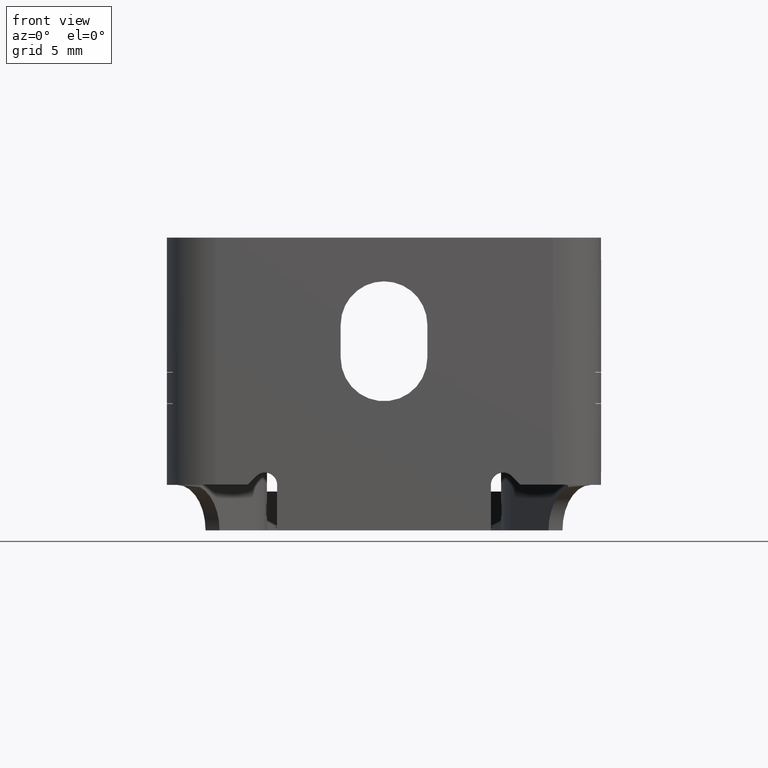
[diagram: clean part render]
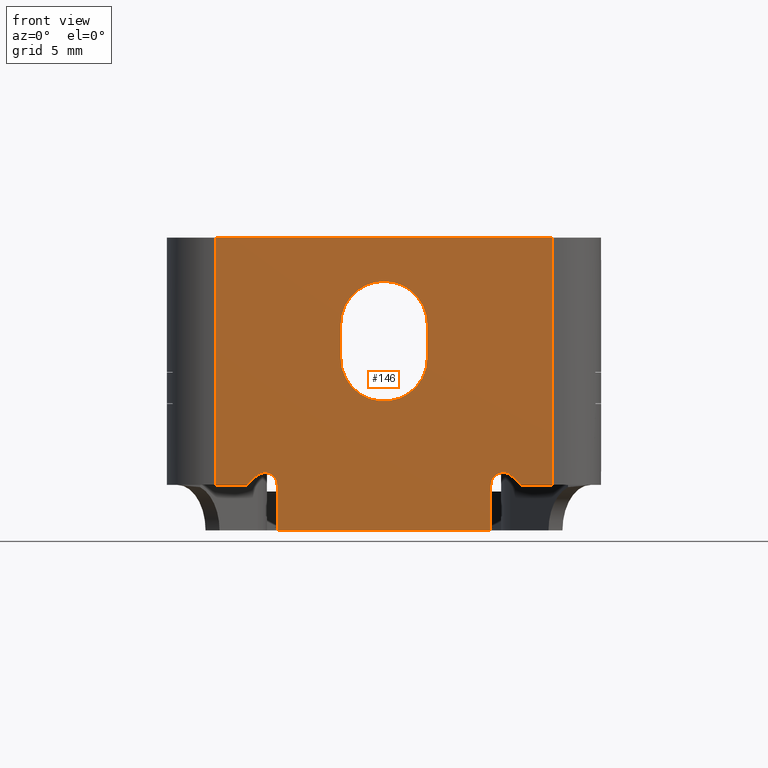
[diagram: same view with one face highlighted and labeled with its STEP entity id]
A machine part, front view. The second image highlights one B-rep face of the part: STEP entity #146.
In plain terms, the highlighted planar face has unit normal (0, 1, 0).
Its self-contained STEP definition (entity closure, byte-faithful):
#37 = CARTESIAN_POINT ( 'NONE',  ( 0.3229203102167831400, -0.04499999999999999800, -0.5830796897832171100 ) ) ;
#82 = VERTEX_POINT ( 'NONE', #2210 ) ;
#139 = EDGE_CURVE ( 'NONE', #2714, #3502, #224, .T. ) ;
#146 = ADVANCED_FACE ( 'NONE', ( #173, #217 ), #2651, .F. ) ;
#151 = DIRECTION ( 'NONE',  ( 1.000000000000000000, 0.0000000000000000000, 0.0000000000000000000 ) ) ;
#173 = FACE_BOUND ( 'NONE', #2837, .T. ) ;
#184 = VERTEX_POINT ( 'NONE', #4098 ) ;
#188 = VERTEX_POINT ( 'NONE', #1244 ) ;
#217 = FACE_OUTER_BOUND ( 'NONE', #3056, .T. ) ;
#224 = CIRCLE ( 'NONE', #3428, 0.1095000000000000000 ) ;
#225 = CARTESIAN_POINT ( 'NONE',  ( -0.4258192205926868400, -0.04499999999999999800, -0.6049999999999999800 ) ) ;
#226 = VERTEX_POINT ( 'NONE', #2822 ) ;
#241 = DIRECTION ( 'NONE',  ( 0.0000000000000000000, 1.000000000000000000, 0.0000000000000000000 ) ) ;
#301 = ORIENTED_EDGE ( 'NONE', *, *, #564, .T. ) ;
#324 = EDGE_CURVE ( 'NONE', #1278, #3802, #2068, .T. ) ;
#333 = CARTESIAN_POINT ( 'NONE',  ( 0.3009999999999999900, -0.04499999999999999800, -0.6049999999999999800 ) ) ;
#357 = AXIS2_PLACEMENT_3D ( 'NONE', #2885, #2881, #2821 ) ;
#414 = LINE ( 'NONE', #2447, #2227 ) ;
#469 = CARTESIAN_POINT ( 'NONE',  ( 0.0000000000000000000, -0.04499999999999999800, -0.1999999999999999800 ) ) ;
#509 = AXIS2_PLACEMENT_3D ( 'NONE', #1008, #241, #1704 ) ;
#520 = ORIENTED_EDGE ( 'NONE', *, *, #3100, .T. ) ;
#546 = ORIENTED_EDGE ( 'NONE', *, *, #139, .T. ) ;
#564 = EDGE_CURVE ( 'NONE', #4377, #921, #2183, .T. ) ;
#612 = ORIENTED_EDGE ( 'NONE', *, *, #3354, .T. ) ;
#836 = DIRECTION ( 'NONE',  ( 0.0000000000000000000, 0.0000000000000000000, 1.000000000000000000 ) ) ;
#858 = CARTESIAN_POINT ( 'NONE',  ( -0.4258192205926868400, -0.04499999999999999800, 0.02000000000000000000 ) ) ;
#878 = VECTOR ( 'NONE', #2335, 39.37007874015748100 ) ;
#884 = DIRECTION ( 'NONE',  ( -0.0000000000000000000, -0.0000000000000000000, -1.000000000000000000 ) ) ;
#905 = AXIS2_PLACEMENT_3D ( 'NONE', #1569, #1490, #1474 ) ;
#921 = VERTEX_POINT ( 'NONE', #2559 ) ;
#925 = CARTESIAN_POINT ( 'NONE',  ( 0.3009999999999999900, -0.04499999999999999800, -0.5740000000000000700 ) ) ;
#987 = LINE ( 'NONE', #2255, #878 ) ;
#997 = CARTESIAN_POINT ( 'NONE',  ( -0.3229203102167831400, -0.04499999999999999800, -0.5830796897832171100 ) ) ;
#1007 = DIRECTION ( 'NONE',  ( 0.0000000000000000000, 0.0000000000000000000, 1.000000000000000000 ) ) ;
#1008 = CARTESIAN_POINT ( 'NONE',  ( -0.3009999999999999900, -0.04499999999999999800, -0.6049999999999999800 ) ) ;
#1044 = CARTESIAN_POINT ( 'NONE',  ( -0.3229203102167830800, -0.04499999999999999800, -0.5830796897832172300 ) ) ;
#1085 = EDGE_CURVE ( 'NONE', #4220, #3686, #3962, .T. ) ;
#1149 = LINE ( 'NONE', #997, #3795 ) ;
#1177 = ORIENTED_EDGE ( 'NONE', *, *, #3075, .T. ) ;
#1204 = ORIENTED_EDGE ( 'NONE', *, *, #3210, .T. ) ;
#1229 = DIRECTION ( 'NONE',  ( 0.0000000000000000000, -0.0000000000000000000, 1.000000000000000000 ) ) ;
#1236 = DIRECTION ( 'NONE',  ( 0.7071067811865442400, -0.0000000000000000000, 0.7071067811865507900 ) ) ;
#1244 = CARTESIAN_POINT ( 'NONE',  ( 0.2700000000000000700, -0.04499999999999999800, -0.6049999999999999800 ) ) ;
#1265 = LINE ( 'NONE', #1410, #3908 ) ;
#1278 = VERTEX_POINT ( 'NONE', #925 ) ;
#1378 = DIRECTION ( 'NONE',  ( -0.0000000000000000000, -0.0000000000000000000, -1.000000000000000000 ) ) ;
#1410 = CARTESIAN_POINT ( 'NONE',  ( -0.4258192205926868400, -0.04499999999999999800, -0.6049999999999999800 ) ) ;
#1474 = DIRECTION ( 'NONE',  ( 0.0000000000000000000, 0.0000000000000000000, 1.000000000000000000 ) ) ;
#1490 = DIRECTION ( 'NONE',  ( 0.0000000000000000000, 1.000000000000000000, 0.0000000000000000000 ) ) ;
#1544 = EDGE_CURVE ( 'NONE', #3271, #184, #3455, .T. ) ;
#1547 = VECTOR ( 'NONE', #3772, 39.37007874015748100 ) ;
#1551 = VECTOR ( 'NONE', #2499, 39.37007874015748100 ) ;
#1569 = CARTESIAN_POINT ( 'NONE',  ( 0.3009999999999999900, -0.04499999999999999800, -0.6049999999999999800 ) ) ;
#1666 = CIRCLE ( 'NONE', #357, 0.1095000000000000000 ) ;
#1704 = DIRECTION ( 'NONE',  ( 0.0000000000000000000, 0.0000000000000000000, 1.000000000000000000 ) ) ;
#1720 = DIRECTION ( 'NONE',  ( 0.0000000000000000000, 0.0000000000000000000, 1.000000000000000000 ) ) ;
#1744 = DIRECTION ( 'NONE',  ( 0.0000000000000000000, 1.000000000000000000, 0.0000000000000000000 ) ) ;
#1781 = CARTESIAN_POINT ( 'NONE',  ( 0.0000000000000000000, -0.04499999999999999800, -0.2839999999999999700 ) ) ;
#1801 = CARTESIAN_POINT ( 'NONE',  ( 0.1095000000000000000, -0.04499999999999999800, -0.1999999999999999800 ) ) ;
#1821 = ORIENTED_EDGE ( 'NONE', *, *, #2484, .F. ) ;
#1866 = ORIENTED_EDGE ( 'NONE', *, *, #3089, .F. ) ;
#1894 = VECTOR ( 'NONE', #3083, 39.37007874015748100 ) ;
#1972 = CARTESIAN_POINT ( 'NONE',  ( -0.2700000000000000200, -0.04499999999999999800, -0.7199999999999999700 ) ) ;
#1992 = VERTEX_POINT ( 'NONE', #1044 ) ;
#2017 = ORIENTED_EDGE ( 'NONE', *, *, #2712, .T. ) ;
#2068 = CIRCLE ( 'NONE', #2102, 0.03100000000000002400 ) ;
#2090 = VERTEX_POINT ( 'NONE', #3339 ) ;
#2102 = AXIS2_PLACEMENT_3D ( 'NONE', #333, #2612, #1007 ) ;
#2113 = VECTOR ( 'NONE', #1378, 39.37007874015748100 ) ;
#2139 = ORIENTED_EDGE ( 'NONE', *, *, #2723, .T. ) ;
#2183 = LINE ( 'NONE', #4037, #3800 ) ;
#2190 = ORIENTED_EDGE ( 'NONE', *, *, #3134, .T. ) ;
#2210 = CARTESIAN_POINT ( 'NONE',  ( 0.4258192205926868400, -0.04499999999999995000, 0.02000000000000000000 ) ) ;
#2227 = VECTOR ( 'NONE', #2889, 39.37007874015748100 ) ;
#2255 = CARTESIAN_POINT ( 'NONE',  ( -0.4258192205926868400, -0.04499999999999999800, 0.02000000000000000000 ) ) ;
#2277 = CARTESIAN_POINT ( 'NONE',  ( 0.3229203102167830800, -0.04499999999999999800, -0.5830796897832172300 ) ) ;
#2320 = CARTESIAN_POINT ( 'NONE',  ( 0.4258192205926868400, -0.04499999999999999800, -0.6049999999999999800 ) ) ;
#2335 = DIRECTION ( 'NONE',  ( 1.000000000000000000, 0.0000000000000000000, 0.0000000000000000000 ) ) ;
#2340 = CIRCLE ( 'NONE', #905, 0.03100000000000002400 ) ;
#2447 = CARTESIAN_POINT ( 'NONE',  ( 0.3448406204335657800, -0.04499999999999999800, -0.6049999999999999800 ) ) ;
#2453 = VECTOR ( 'NONE', #3395, 39.37007874015748900 ) ;
#2484 = EDGE_CURVE ( 'NONE', #4220, #82, #987, .T. ) ;
#2488 = CARTESIAN_POINT ( 'NONE',  ( 0.1095000000000000000, -0.04499999999999999800, -0.1999999999999999800 ) ) ;
#2499 = DIRECTION ( 'NONE',  ( 0.0000000000000000000, 0.0000000000000000000, -1.000000000000000000 ) ) ;
#2519 = LINE ( 'NONE', #2488, #1551 ) ;
#2559 = CARTESIAN_POINT ( 'NONE',  ( 0.2700000000000000200, -0.04499999999999999800, -0.7199999999999999700 ) ) ;
#2612 = DIRECTION ( 'NONE',  ( 0.0000000000000000000, 1.000000000000000000, 0.0000000000000000000 ) ) ;
#2627 = LINE ( 'NONE', #3086, #1894 ) ;
#2651 = PLANE ( 'NONE',  #3060 ) ;
#2697 = AXIS2_PLACEMENT_3D ( 'NONE', #4277, #4259, #4246 ) ;
#2712 = EDGE_CURVE ( 'NONE', #3396, #226, #2627, .T. ) ;
#2714 = VERTEX_POINT ( 'NONE', #3099 ) ;
#2723 = EDGE_CURVE ( 'NONE', #226, #2714, #1666, .T. ) ;
#2757 = CARTESIAN_POINT ( 'NONE',  ( 0.3448406204335657800, -0.04499999999999999800, -0.6049999999999999800 ) ) ;
#2777 = EDGE_CURVE ( 'NONE', #3502, #3749, #2519, .T. ) ;
#2782 = CARTESIAN_POINT ( 'NONE',  ( 0.4258192205926868400, -0.04499999999999995000, 0.02000000000000000000 ) ) ;
#2819 = EDGE_CURVE ( 'NONE', #3749, #3396, #4176, .T. ) ;
#2821 = DIRECTION ( 'NONE',  ( 0.0000000000000000000, 0.0000000000000000000, 1.000000000000000000 ) ) ;
#2822 = CARTESIAN_POINT ( 'NONE',  ( -0.1095000000000000000, -0.04499999999999999800, -0.1999999999999999800 ) ) ;
#2837 = EDGE_LOOP ( 'NONE', ( #2017, #2139, #546, #4094, #3325 ) ) ;
#2841 = CARTESIAN_POINT ( 'NONE',  ( -0.1095000000000000000, -0.04499999999999999800, -0.2839999999999999700 ) ) ;
#2864 = CARTESIAN_POINT ( 'NONE',  ( -0.4258192205926868400, -0.04499999999999999800, 0.02000000000000000000 ) ) ;
#2881 = DIRECTION ( 'NONE',  ( 0.0000000000000000000, 1.000000000000000000, 0.0000000000000000000 ) ) ;
#2885 = CARTESIAN_POINT ( 'NONE',  ( 0.0000000000000000000, -0.04499999999999999800, -0.1999999999999999800 ) ) ;
#2889 = DIRECTION ( 'NONE',  ( 1.000000000000000000, 0.0000000000000000000, 0.0000000000000000000 ) ) ;
#2979 = EDGE_CURVE ( 'NONE', #3802, #4284, #3400, .T. ) ;
#2986 = DIRECTION ( 'NONE',  ( 0.0000000000000000000, 1.000000000000000000, 0.0000000000000000000 ) ) ;
#3016 = AXIS2_PLACEMENT_3D ( 'NONE', #1781, #1744, #1720 ) ;
#3041 = ORIENTED_EDGE ( 'NONE', *, *, #2979, .T. ) ;
#3056 = EDGE_LOOP ( 'NONE', ( #3041, #1177, #1866, #1821, #3635, #520, #2190, #1204, #4156, #4595, #301, #612, #3451, #3096 ) ) ;
#3060 = AXIS2_PLACEMENT_3D ( 'NONE', #3368, #3379, #1229 ) ;
#3075 = EDGE_CURVE ( 'NONE', #4284, #3823, #414, .T. ) ;
#3083 = DIRECTION ( 'NONE',  ( -0.0000000000000000000, -0.0000000000000000000, 1.000000000000000000 ) ) ;
#3086 = CARTESIAN_POINT ( 'NONE',  ( -0.1095000000000000000, -0.04499999999999999800, -0.1999999999999999800 ) ) ;
#3089 = EDGE_CURVE ( 'NONE', #82, #3823, #4118, .T. ) ;
#3095 = CARTESIAN_POINT ( 'NONE',  ( 0.1095000000000000100, -0.04499999999999999800, -0.2839999999999999700 ) ) ;
#3096 = ORIENTED_EDGE ( 'NONE', *, *, #324, .T. ) ;
#3099 = CARTESIAN_POINT ( 'NONE',  ( 0.0000000000000000000, -0.04499999999999999800, -0.09049999999999998300 ) ) ;
#3100 = EDGE_CURVE ( 'NONE', #3686, #2090, #1265, .T. ) ;
#3105 = VECTOR ( 'NONE', #3194, 39.37007874015748100 ) ;
#3134 = EDGE_CURVE ( 'NONE', #2090, #1992, #1149, .T. ) ;
#3143 = CARTESIAN_POINT ( 'NONE',  ( 0.2700000000000000200, -0.04499999999999999800, -0.7199999999999999700 ) ) ;
#3194 = DIRECTION ( 'NONE',  ( 2.969399993113331600E-016, 0.0000000000000000000, 1.000000000000000000 ) ) ;
#3210 = EDGE_CURVE ( 'NONE', #1992, #3271, #4489, .T. ) ;
#3223 = LINE ( 'NONE', #3143, #3105 ) ;
#3271 = VERTEX_POINT ( 'NONE', #4291 ) ;
#3275 = EDGE_CURVE ( 'NONE', #184, #4377, #4383, .T. ) ;
#3325 = ORIENTED_EDGE ( 'NONE', *, *, #2819, .T. ) ;
#3339 = CARTESIAN_POINT ( 'NONE',  ( -0.3448406204335658400, -0.04499999999999999800, -0.6049999999999999800 ) ) ;
#3354 = EDGE_CURVE ( 'NONE', #921, #188, #3223, .T. ) ;
#3368 = CARTESIAN_POINT ( 'NONE',  ( -0.4258192205926868400, -0.04499999999999999800, 0.02000000000000000000 ) ) ;
#3379 = DIRECTION ( 'NONE',  ( 0.0000000000000000000, 1.000000000000000000, 0.0000000000000000000 ) ) ;
#3395 = DIRECTION ( 'NONE',  ( 0.7071067811865430200, 0.0000000000000000000, -0.7071067811865519000 ) ) ;
#3396 = VERTEX_POINT ( 'NONE', #2841 ) ;
#3400 = LINE ( 'NONE', #37, #2453 ) ;
#3428 = AXIS2_PLACEMENT_3D ( 'NONE', #469, #2986, #836 ) ;
#3451 = ORIENTED_EDGE ( 'NONE', *, *, #3533, .T. ) ;
#3455 = CIRCLE ( 'NONE', #509, 0.03100000000000002400 ) ;
#3502 = VERTEX_POINT ( 'NONE', #1801 ) ;
#3533 = EDGE_CURVE ( 'NONE', #188, #1278, #2340, .T. ) ;
#3635 = ORIENTED_EDGE ( 'NONE', *, *, #1085, .T. ) ;
#3686 = VERTEX_POINT ( 'NONE', #225 ) ;
#3749 = VERTEX_POINT ( 'NONE', #3095 ) ;
#3772 = DIRECTION ( 'NONE',  ( 2.969399993113331600E-016, -0.0000000000000000000, -1.000000000000000000 ) ) ;
#3795 = VECTOR ( 'NONE', #1236, 39.37007874015748100 ) ;
#3800 = VECTOR ( 'NONE', #4607, 39.37007874015748100 ) ;
#3802 = VERTEX_POINT ( 'NONE', #2277 ) ;
#3823 = VERTEX_POINT ( 'NONE', #2320 ) ;
#3876 = CARTESIAN_POINT ( 'NONE',  ( -0.2700000000000000200, -0.04499999999999999800, -0.7199999999999999700 ) ) ;
#3908 = VECTOR ( 'NONE', #151, 39.37007874015748100 ) ;
#3961 = VECTOR ( 'NONE', #884, 39.37007874015748100 ) ;
#3962 = LINE ( 'NONE', #858, #3961 ) ;
#4037 = CARTESIAN_POINT ( 'NONE',  ( -0.4258192205926868400, -0.04499999999999999800, -0.7199999999999999700 ) ) ;
#4094 = ORIENTED_EDGE ( 'NONE', *, *, #2777, .T. ) ;
#4098 = CARTESIAN_POINT ( 'NONE',  ( -0.2700000000000000700, -0.04499999999999999800, -0.6049999999999999800 ) ) ;
#4118 = LINE ( 'NONE', #2782, #2113 ) ;
#4156 = ORIENTED_EDGE ( 'NONE', *, *, #1544, .T. ) ;
#4176 = CIRCLE ( 'NONE', #3016, 0.1094999999999999900 ) ;
#4220 = VERTEX_POINT ( 'NONE', #2864 ) ;
#4246 = DIRECTION ( 'NONE',  ( 0.0000000000000000000, 0.0000000000000000000, 1.000000000000000000 ) ) ;
#4259 = DIRECTION ( 'NONE',  ( 0.0000000000000000000, 1.000000000000000000, 0.0000000000000000000 ) ) ;
#4277 = CARTESIAN_POINT ( 'NONE',  ( -0.3009999999999999900, -0.04499999999999999800, -0.6049999999999999800 ) ) ;
#4284 = VERTEX_POINT ( 'NONE', #2757 ) ;
#4291 = CARTESIAN_POINT ( 'NONE',  ( -0.3009999999999999900, -0.04499999999999999800, -0.5740000000000000700 ) ) ;
#4377 = VERTEX_POINT ( 'NONE', #1972 ) ;
#4383 = LINE ( 'NONE', #3876, #1547 ) ;
#4489 = CIRCLE ( 'NONE', #2697, 0.03100000000000002400 ) ;
#4595 = ORIENTED_EDGE ( 'NONE', *, *, #3275, .T. ) ;
#4607 = DIRECTION ( 'NONE',  ( 1.000000000000000000, 0.0000000000000000000, 0.0000000000000000000 ) ) ;